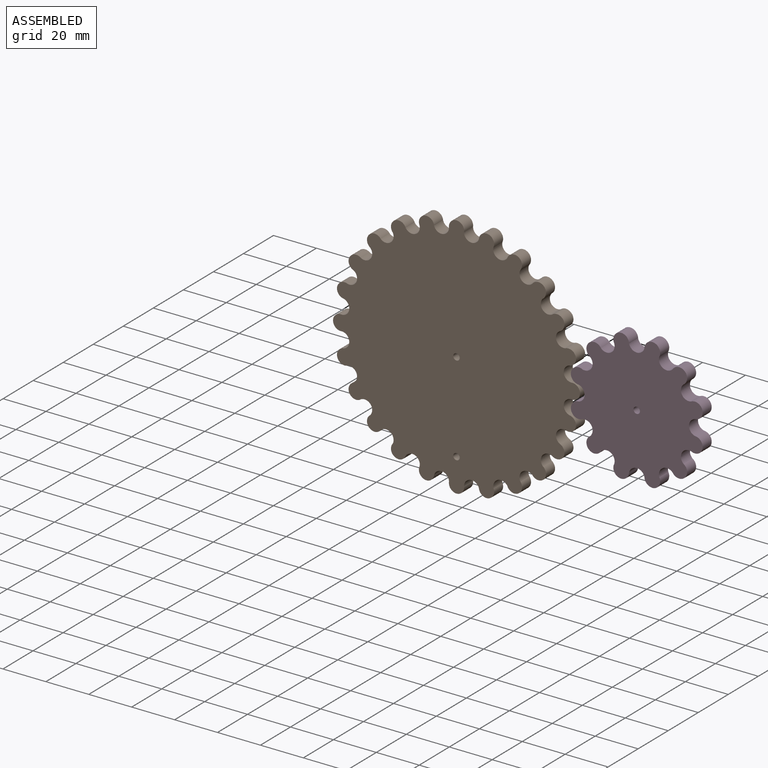
[diagram: assembled view]
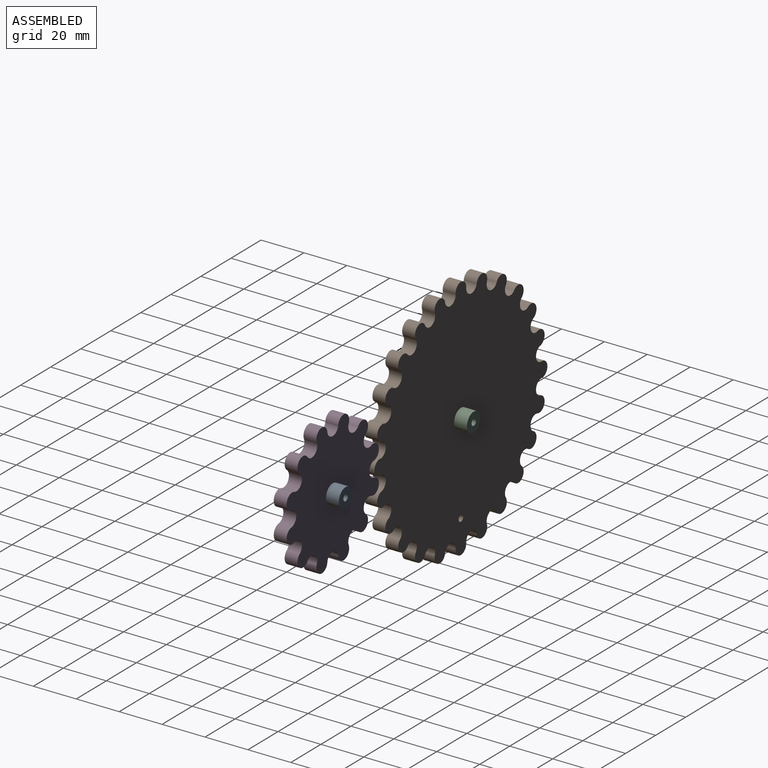
[diagram: assembled view, second angle]
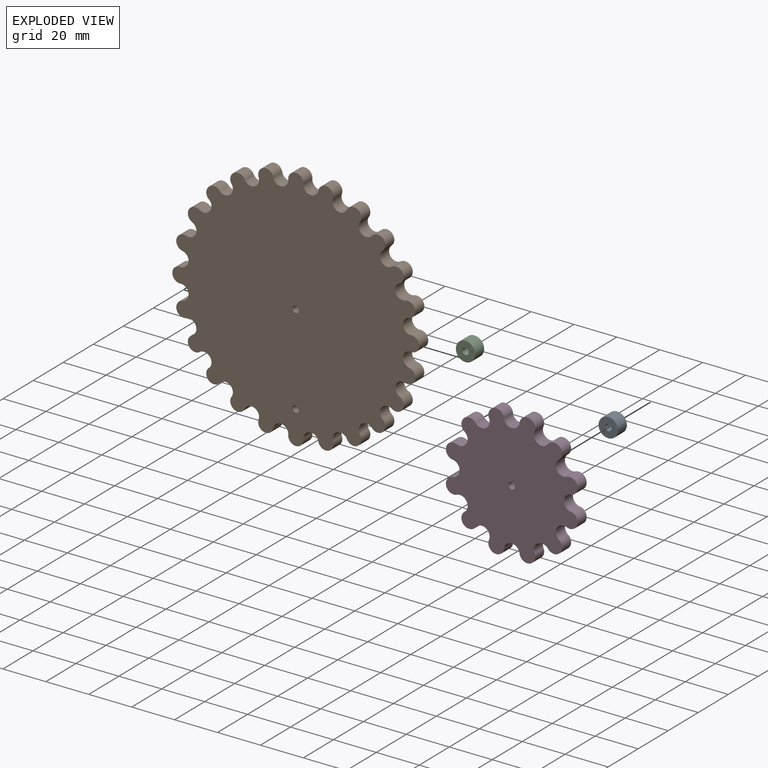
[diagram: exploded view]
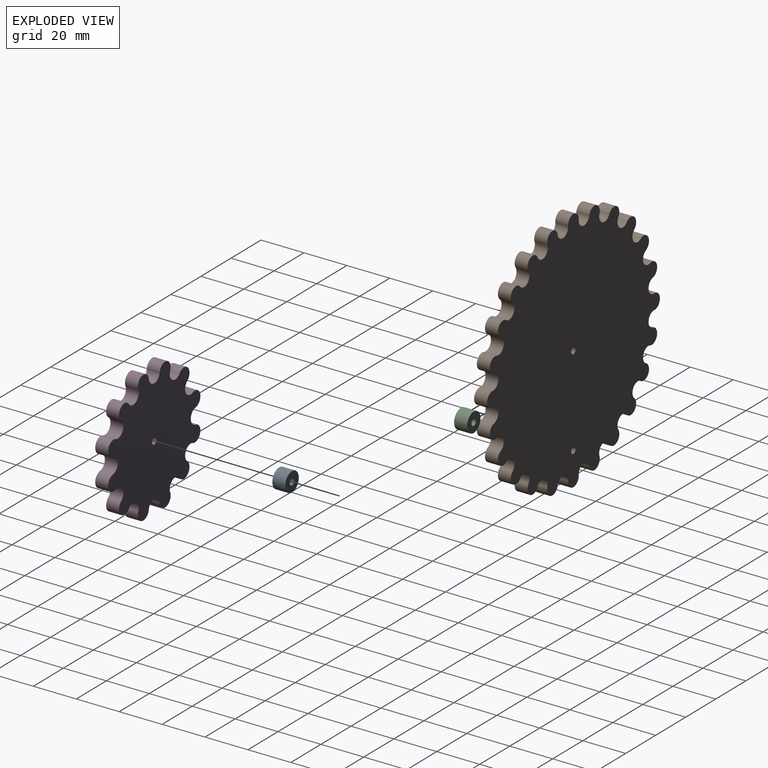
[diagram: exploded view, second angle]
ASSEMBLY  parts=4 mates=2
PART A: 4 faces, bbox 9x6x9 mm
  f0: cylinder r=1.5mm len=6mm, axis (0,1,0), area 56.5mm2, adj f2,f3
  f1: cylinder r=4.5mm len=9mm, axis (0,1,0), area 169.6mm2, adj f2,f3
  f2: plane 9x9mm, normal (0,-1,0), area 56.5mm2, adj f0,f1
  f3: plane 9x9mm, normal (0,1,0), area 56.5mm2, adj f0,f1
PART B: 52 faces, bbox 115.1x6x115.1 mm
  f0: cylinder r=3.55mm len=7.1mm, axis (0,1,0), area 74mm2, adj f1,f48,f50,f51
  f1: cylinder r=3.55mm len=6.94mm, axis (0,1,0), area 59.8mm2, adj f0,f2,f50,f51
  f2: cylinder r=3.55mm len=7.08mm, axis (0,1,0), area 74mm2, adj f1,f3,f50,f51
  f3: cylinder r=3.55mm len=6.56mm, axis (0,1,0), area 59.8mm2, adj f2,f4,f50,f51
  f4: cylinder r=3.55mm len=6.88mm, axis (0,1,0), area 74mm2, adj f3,f5,f50,f51
  f5: cylinder r=3.55mm len=6mm, axis (0,1,0), area 59.8mm2, adj f4,f6,f50,f51
  f6: cylinder r=3.55mm len=6.44mm, axis (0,1,0), area 74mm2, adj f5,f7,f50,f51
  f7: cylinder r=3.55mm len=6mm, axis (0,1,0), area 59.8mm2, adj f6,f8,f50,f51
  f8: cylinder r=3.55mm len=6.88mm, axis (0,1,0), area 74mm2, adj f7,f9,f50,f51
  f9: cylinder r=3.55mm len=6.56mm, axis (0,1,0), area 59.8mm2, adj f8,f10,f50,f51
  f10: cylinder r=3.55mm len=7.08mm, axis (0,1,0), area 74mm2, adj f9,f11,f50,f51
  f11: cylinder r=3.55mm len=6.94mm, axis (0,1,0), area 59.8mm2, adj f10,f12,f50,f51
  f12: cylinder r=3.55mm len=7.1mm, axis (0,1,0), area 74mm2, adj f11,f13,f50,f51
  f13: cylinder r=3.55mm len=6.94mm, axis (0,1,0), area 59.8mm2, adj f12,f14,f50,f51
  f14: cylinder r=3.55mm len=7.08mm, axis (0,1,0), area 74mm2, adj f13,f15,f50,f51
  f15: cylinder r=3.55mm len=6.56mm, axis (0,1,0), area 59.8mm2, adj f14,f16,f50,f51
  f16: cylinder r=3.55mm len=6.88mm, axis (0,1,0), area 74mm2, adj f15,f17,f50,f51
  f17: cylinder r=3.55mm len=6mm, axis (0,1,0), area 59.8mm2, adj f16,f18,f50,f51
  f18: cylinder r=3.55mm len=6.44mm, axis (0,1,0), area 74mm2, adj f17,f19,f50,f51
  f19: cylinder r=3.55mm len=6mm, axis (0,1,0), area 59.8mm2, adj f18,f20,f50,f51
  f20: cylinder r=3.55mm len=6.88mm, axis (0,1,0), area 74mm2, adj f19,f21,f50,f51
  f21: cylinder r=3.55mm len=6.56mm, axis (0,1,0), area 59.8mm2, adj f20,f22,f50,f51
  f22: cylinder r=3.55mm len=7.08mm, axis (0,1,0), area 74mm2, adj f21,f23,f50,f51
  f23: cylinder r=3.55mm len=6.94mm, axis (0,1,0), area 59.8mm2, adj f22,f24,f50,f51
  f24: cylinder r=3.55mm len=7.1mm, axis (0,1,0), area 74mm2, adj f23,f25,f50,f51
  f25: cylinder r=3.55mm len=6.94mm, axis (0,1,0), area 59.8mm2, adj f24,f26,f50,f51
  f26: cylinder r=3.55mm len=7.08mm, axis (0,1,0), area 74mm2, adj f25,f27,f50,f51
  f27: cylinder r=3.55mm len=6.56mm, axis (0,1,0), area 59.8mm2, adj f26,f28,f50,f51
  f28: cylinder r=3.55mm len=6.88mm, axis (0,1,0), area 74mm2, adj f27,f29,f50,f51
  f29: cylinder r=3.55mm len=6mm, axis (0,1,0), area 59.8mm2, adj f28,f30,f50,f51
  f30: cylinder r=3.55mm len=6.44mm, axis (0,1,0), area 74mm2, adj f29,f31,f50,f51
  f31: cylinder r=3.55mm len=6mm, axis (0,1,0), area 59.8mm2, adj f30,f32,f50,f51
  f32: cylinder r=3.55mm len=6.88mm, axis (0,1,0), area 74mm2, adj f31,f33,f50,f51
  f33: cylinder r=3.55mm len=6.56mm, axis (0,1,0), area 59.8mm2, adj f32,f34,f50,f51
  f34: cylinder r=3.55mm len=7.08mm, axis (0,1,0), area 74mm2, adj f33,f35,f50,f51
  f35: cylinder r=3.55mm len=6.94mm, axis (0,1,0), area 59.8mm2, adj f34,f36,f50,f51
  f36: cylinder r=3.55mm len=7.1mm, axis (0,1,0), area 74mm2, adj f35,f37,f50,f51
  f37: cylinder r=3.55mm len=6.94mm, axis (0,1,0), area 59.8mm2, adj f36,f38,f50,f51
  f38: cylinder r=3.55mm len=7.08mm, axis (0,1,0), area 74mm2, adj f37,f39,f50,f51
  f39: cylinder r=3.55mm len=6.56mm, axis (0,1,0), area 59.8mm2, adj f38,f40,f50,f51
  f40: cylinder r=3.55mm len=6.88mm, axis (0,1,0), area 74mm2, adj f39,f41,f50,f51
  f41: cylinder r=3.55mm len=6mm, axis (0,1,0), area 59.8mm2, adj f40,f42,f50,f51
  f42: cylinder r=3.55mm len=6.44mm, axis (0,1,0), area 74mm2, adj f41,f43,f50,f51
  f43: cylinder r=3.55mm len=6mm, axis (0,1,0), area 59.8mm2, adj f42,f44,f50,f51
  f44: cylinder r=3.55mm len=6.88mm, axis (0,1,0), area 74mm2, adj f43,f45,f50,f51
  f45: cylinder r=3.55mm len=6.56mm, axis (0,1,0), area 59.8mm2, adj f44,f46,f50,f51
  f46: cylinder r=3.55mm len=7.08mm, axis (0,1,0), area 74mm2, adj f45,f48,f50,f51
  f47: cylinder r=1.5mm len=6mm, axis (0,1,0), area 56.5mm2, adj f50,f51
  f48: cylinder r=3.55mm len=6.94mm, axis (0,1,0), area 59.8mm2, adj f0,f46,f50,f51
  f49: cylinder r=1.5mm len=6mm, axis (0,1,0), area 56.5mm2, adj f50,f51
  f50: plane 115.1x115.1mm, normal (0,-1,0), area 9160.6mm2, adj f0,f1,f2,f3,f4,f5,f6,f7
  f51: plane 115.1x115.1mm, normal (0,1,0), area 9160.6mm2, adj f0,f1,f2,f3,f4,f5,f6,f7
PART C: same geometry as A
PART D: 27 faces, bbox 63.4x6x63.4 mm
  f0: cylinder r=3.67mm len=7.35mm, axis (0,1,0), area 79.7mm2, adj f1,f23,f25,f26
  f1: cylinder r=3.67mm len=6.9mm, axis (0,1,0), area 58.9mm2, adj f0,f2,f25,f26
  f2: cylinder r=3.67mm len=7.2mm, axis (0,1,0), area 79.7mm2, adj f1,f3,f25,f26
  f3: cylinder r=3.67mm len=6mm, axis (0,1,0), area 58.9mm2, adj f2,f4,f25,f26
  f4: cylinder r=3.67mm len=7.2mm, axis (0,1,0), area 79.7mm2, adj f3,f5,f25,f26
  f5: cylinder r=3.67mm len=6.9mm, axis (0,1,0), area 58.9mm2, adj f4,f6,f25,f26
  f6: cylinder r=3.67mm len=7.35mm, axis (0,1,0), area 79.7mm2, adj f5,f7,f25,f26
  f7: cylinder r=3.67mm len=6.9mm, axis (0,1,0), area 58.9mm2, adj f6,f8,f25,f26
  f8: cylinder r=3.67mm len=7.2mm, axis (0,1,0), area 79.7mm2, adj f7,f9,f25,f26
  f9: cylinder r=3.67mm len=6mm, axis (0,1,0), area 58.9mm2, adj f8,f10,f25,f26
  f10: cylinder r=3.67mm len=7.2mm, axis (0,1,0), area 79.7mm2, adj f9,f11,f25,f26
  f11: cylinder r=3.67mm len=6.9mm, axis (0,1,0), area 58.9mm2, adj f10,f12,f25,f26
  f12: cylinder r=3.67mm len=7.35mm, axis (0,1,0), area 79.7mm2, adj f11,f13,f25,f26
  f13: cylinder r=3.67mm len=6.9mm, axis (0,1,0), area 58.9mm2, adj f12,f14,f25,f26
  f14: cylinder r=3.67mm len=7.2mm, axis (0,1,0), area 79.7mm2, adj f13,f15,f25,f26
  f15: cylinder r=3.67mm len=6mm, axis (0,1,0), area 58.9mm2, adj f14,f16,f25,f26
  f16: cylinder r=3.67mm len=7.2mm, axis (0,1,0), area 79.7mm2, adj f15,f17,f25,f26
  f17: cylinder r=3.67mm len=6.9mm, axis (0,1,0), area 58.9mm2, adj f16,f18,f25,f26
  f18: cylinder r=3.67mm len=7.35mm, axis (0,1,0), area 79.7mm2, adj f17,f19,f25,f26
  f19: cylinder r=3.67mm len=6.9mm, axis (0,1,0), area 58.9mm2, adj f18,f20,f25,f26
  f20: cylinder r=3.67mm len=7.2mm, axis (0,1,0), area 79.7mm2, adj f19,f21,f25,f26
  f21: cylinder r=3.67mm len=6mm, axis (0,1,0), area 58.9mm2, adj f20,f22,f25,f26
  f22: cylinder r=3.67mm len=7.2mm, axis (0,1,0), area 79.7mm2, adj f21,f23,f25,f26
  f23: cylinder r=3.67mm len=6.9mm, axis (0,1,0), area 58.9mm2, adj f0,f22,f25,f26
  f24: cylinder r=1.5mm len=6mm, axis (0,1,0), area 56.5mm2, adj f25,f26
  f25: plane 63.35x63.35mm, normal (0,-1,0), area 2470.6mm2, adj f0,f1,f2,f3,f4,f5,f6,f7
  f26: plane 63.35x63.35mm, normal (0,1,0), area 2470.6mm2, adj f0,f1,f2,f3,f4,f5,f6,f7
PLACE A rot(axis=(0,-1,0),15deg) t=(17.87,15,-23.96)mm fixed
PLACE B t=(-105.18,9.6,0.55)mm
PLACE C t=(-74.3,15.6,-33.43)mm fixed
PLACE D rot(axis=(0,1,0),165deg) t=(-20.75,9,0.87)mm
MATE revolute D.f24 <-> A.f0  axis (0,1,0) through (-20.75,9,0.87)mm
MATE revolute B.f49 <-> C.f0  axis (0,1,0) through (-105.18,9.6,0.55)mm
